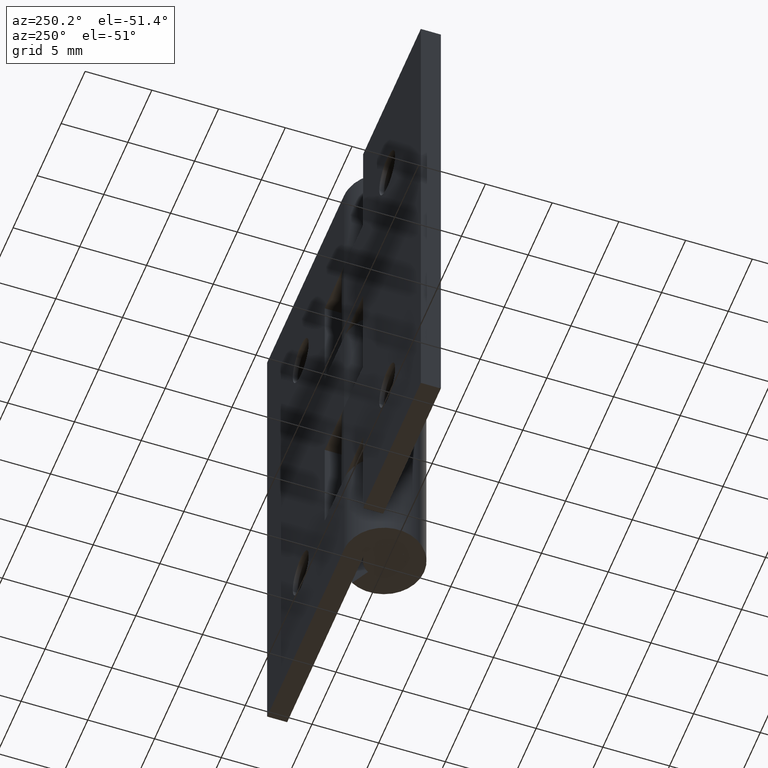
[diagram: clean part render]
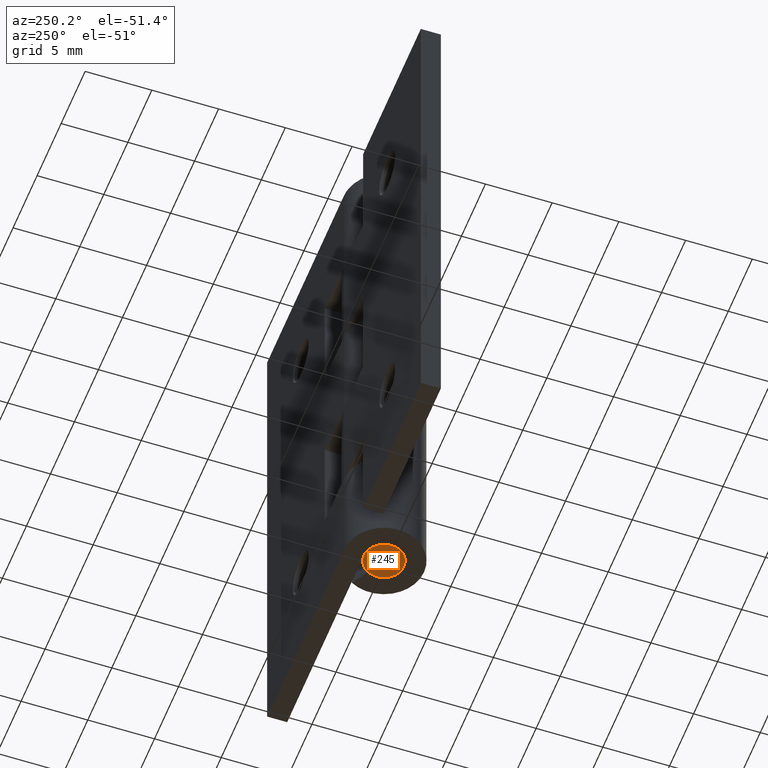
[diagram: same view with one face highlighted and labeled with its STEP entity id]
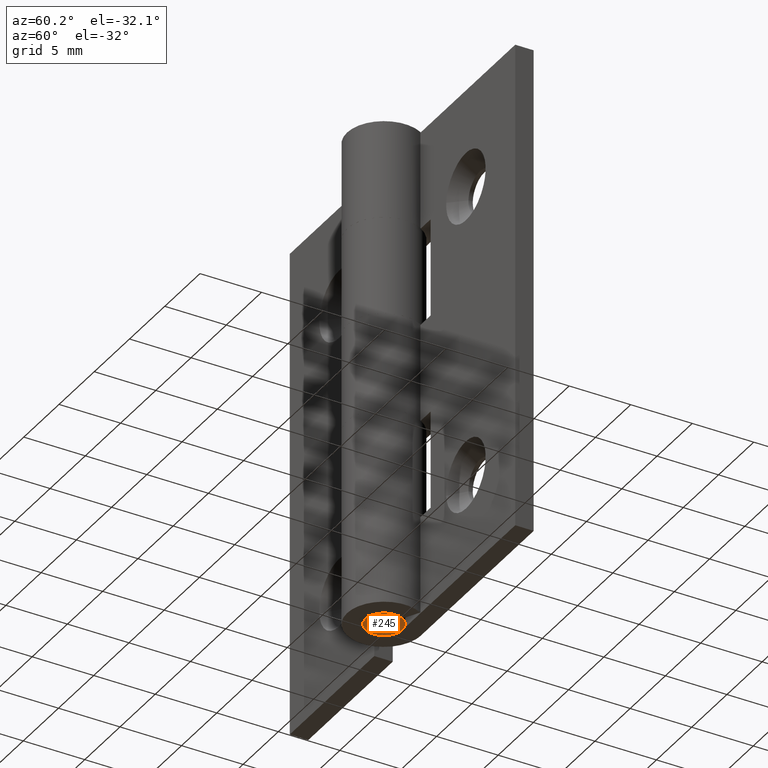
[diagram: same view with one face highlighted and labeled with its STEP entity id]
A machine part, auxiliary view. The second image highlights one B-rep face of the part: STEP entity #245.
A second angle (auxiliary view) of the same face is appended — the face is thin or edge-on in the first view.
In plain terms, the highlighted face is a freeform B-spline surface patch.
Its self-contained STEP definition (entity closure, byte-faithful):
#66=CARTESIAN_POINT('',(0.177048581627317,-1.489514618839295,-4.543085E-015));
#67=VERTEX_POINT('',#66);
#68=CARTESIAN_POINT('',(-1.500000000000000,0.0,0.0));
#69=VERTEX_POINT('',#68);
#70=CARTESIAN_POINT('',(0.177048581627317,-1.489514618839296,-4.543085E-015));
#71=CARTESIAN_POINT('',(0.088834779655407,-1.500000000000000,0.0));
#72=CARTESIAN_POINT('',(0.0,-1.500000000000000,0.0));
#73=CARTESIAN_POINT('',(-1.500000000000000,-1.500000000000000,0.0));
#74=CARTESIAN_POINT('',(-1.500000000000000,0.0,0.0));
#82=(BOUNDED_CURVE()B_SPLINE_CURVE(2,(#70,#71,#72,#73,#74),.UNSPECIFIED.,.F.,.U.)B_SPLINE_CURVE_WITH_KNOTS((3,2,3),(0.229562787845978,0.250000000000000,0.500000000000000),.UNSPECIFIED.)CURVE()GEOMETRIC_REPRESENTATION_ITEM()RATIONAL_B_SPLINE_CURVE((0.956027370289129,0.976056316594540,1.0,0.707106781186548,1.0))REPRESENTATION_ITEM(''));
#83=EDGE_CURVE('',#67,#69,#82,.T.);
#124=CARTESIAN_POINT('',(-0.091572809322920,1.497202197631538,1.110223E-016));
#125=VERTEX_POINT('',#124);
#131=CARTESIAN_POINT('',(-1.500000000000000,0.0,0.0));
#132=CARTESIAN_POINT('',(-1.500000000000000,1.411059100319583,0.0));
#133=CARTESIAN_POINT('',(-0.091572809322920,1.497202197631539,1.110223E-016));
#141=(BOUNDED_CURVE()B_SPLINE_CURVE(2,(#131,#132,#133),.UNSPECIFIED.,.F.,.U.)B_SPLINE_CURVE_WITH_KNOTS((3,3),(0.500000000000000,0.739332962237213),.UNSPECIFIED.)CURVE()GEOMETRIC_REPRESENTATION_ITEM()RATIONAL_B_SPLINE_CURVE((1.0,0.719603993288737,0.976072041663010))REPRESENTATION_ITEM(''));
#142=EDGE_CURVE('',#69,#125,#141,.T.);
#169=CARTESIAN_POINT('',(1.500000000000000,0.0,0.0));
#170=VERTEX_POINT('',#169);
#171=CARTESIAN_POINT('',(1.500000000000000,0.0,0.0));
#172=CARTESIAN_POINT('',(1.500000000000001,-1.332264284254892,0.0));
#173=CARTESIAN_POINT('',(0.177048581627317,-1.489514618839296,-4.543085E-015));
#181=(BOUNDED_CURVE()B_SPLINE_CURVE(2,(#171,#172,#173),.UNSPECIFIED.,.F.,.U.)B_SPLINE_CURVE_WITH_KNOTS((3,3),(0.0,0.229562787845978),.UNSPECIFIED.)CURVE()GEOMETRIC_REPRESENTATION_ITEM()RATIONAL_B_SPLINE_CURVE((1.0,0.731050464592008,0.956027370289129))REPRESENTATION_ITEM(''));
#182=EDGE_CURVE('',#170,#67,#181,.T.);
#184=CARTESIAN_POINT('',(-0.091572809322920,1.497202197631538,1.110223E-016));
#185=CARTESIAN_POINT('',(-0.045829144968576,1.500000000000000,0.0));
#186=CARTESIAN_POINT('',(0.0,1.500000000000000,0.0));
#187=CARTESIAN_POINT('',(1.500000000000000,1.500000000000000,0.0));
#188=CARTESIAN_POINT('',(1.500000000000000,0.0,0.0));
#196=(BOUNDED_CURVE()B_SPLINE_CURVE(2,(#184,#185,#186,#187,#188),.UNSPECIFIED.,.F.,.U.)B_SPLINE_CURVE_WITH_KNOTS((3,2,3),(0.739332962237212,0.750000000000000,1.0),.UNSPECIFIED.)CURVE()GEOMETRIC_REPRESENTATION_ITEM()RATIONAL_B_SPLINE_CURVE((0.976072041663009,0.987502787897810,1.0,0.707106781186548,1.0))REPRESENTATION_ITEM(''));
#197=EDGE_CURVE('',#125,#170,#196,.T.);
#234=CARTESIAN_POINT('',(-1.649849994185418,-1.649822796803149,0.0));
#235=CARTESIAN_POINT('',(1.649850074651688,-1.649822796803149,0.0));
#236=CARTESIAN_POINT('',(-1.649849994185418,1.649813489537868,0.0));
#237=CARTESIAN_POINT('',(1.649850074651688,1.649813489537868,0.0));
#238=B_SPLINE_SURFACE_WITH_KNOTS('',1,1,((#234,#236),(#235,#237)),.UNSPECIFIED.,.F.,.F.,.U.,(2,2),(2,2),(0.0,3.299700068837106),(0.0,3.299636286341017),.UNSPECIFIED.);
#239=ORIENTED_EDGE('',*,*,#182,.T.);
#240=ORIENTED_EDGE('',*,*,#83,.T.);
#241=ORIENTED_EDGE('',*,*,#142,.T.);
#242=ORIENTED_EDGE('',*,*,#197,.T.);
#243=EDGE_LOOP('',(#239,#240,#241,#242));
#244=FACE_OUTER_BOUND('',#243,.T.);
#245=ADVANCED_FACE('',(#244),#238,.F.);